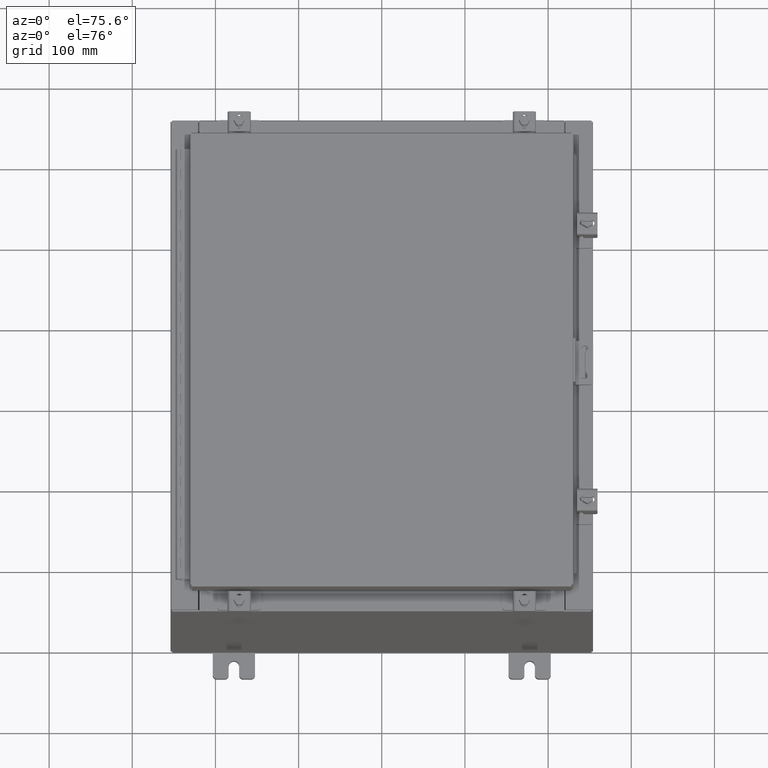
[diagram: clean part render]
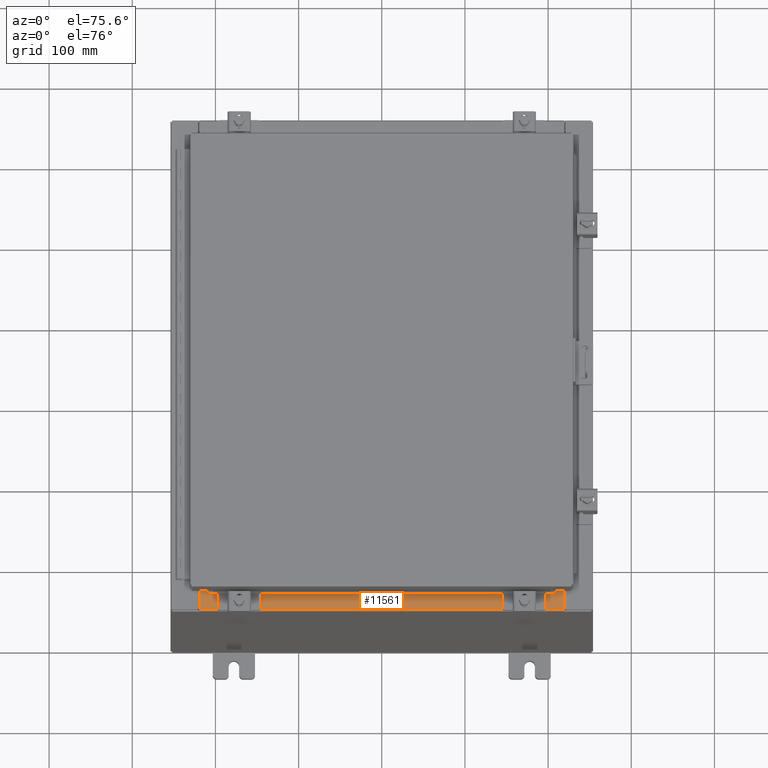
[diagram: same view with one face highlighted and labeled with its STEP entity id]
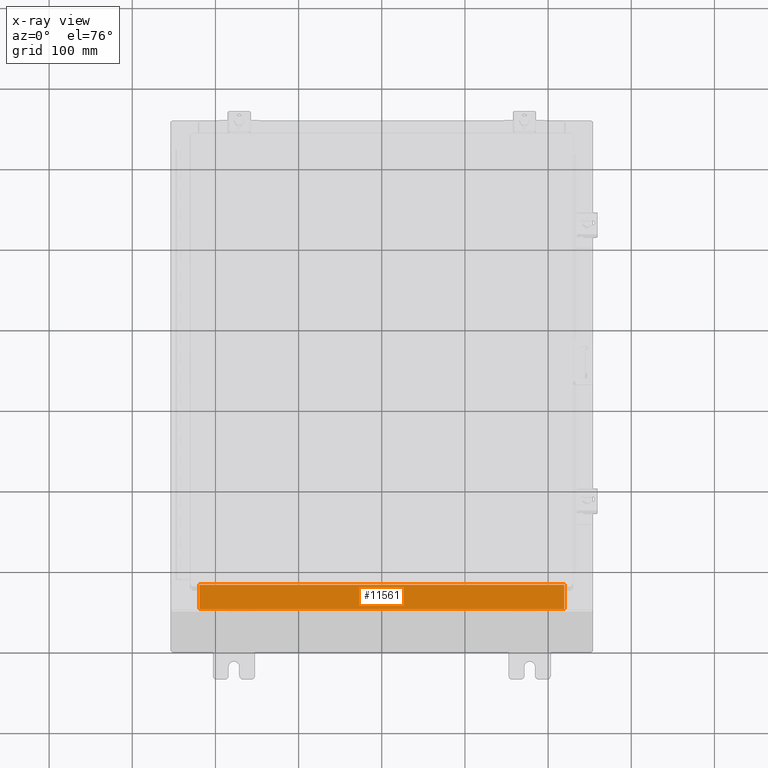
[diagram: x-ray of the same camera — body ghosted, the highlighted face saturated]
A machine part, auxiliary view. The second image highlights one B-rep face of the part: STEP entity #11561.
The next image is the same camera in x-ray: the body ghosted, the highlighted face saturated — about 0% of this face is hidden behind the body in this view.
In plain terms, the highlighted planar face has unit normal (-0, -0, 1).
Its self-contained STEP definition (entity closure, byte-faithful):
#314 = EDGE_CURVE ( 'NONE', #26483, #9694, #7683, .T. ) ;
#424 = ORIENTED_EDGE ( 'NONE', *, *, #314, .T. ) ;
#775 = CARTESIAN_POINT ( 'NONE',  ( -8.637200000000000000, -1.287299999999999200, 4.000000000000004400 ) ) ;
#1191 = VECTOR ( 'NONE', #30852, 39.37007874015748100 ) ;
#1311 = DIRECTION ( 'NONE',  ( -0.0000000000000000000, -1.000000000000000000, 3.566381192773190000E-015 ) ) ;
#1748 = VECTOR ( 'NONE', #1311, 39.37007874015748100 ) ;
#3635 = CARTESIAN_POINT ( 'NONE',  ( 8.637200000000000000, -1.287299999999999900, 4.000000000000003600 ) ) ;
#4105 = DIRECTION ( 'NONE',  ( 0.0000000000000000000, 3.566381192773190000E-015, 1.000000000000000000 ) ) ;
#4368 = VECTOR ( 'NONE', #26323, 39.37007874015748100 ) ;
#5742 = CARTESIAN_POINT ( 'NONE',  ( -8.637200000000000000, -0.07469999999999973900, 4.000000000000000000 ) ) ;
#6834 = LINE ( 'NONE', #16343, #1748 ) ;
#7323 = CARTESIAN_POINT ( 'NONE',  ( 8.637200000000000000, -1.287299999999999900, 4.000000000000004400 ) ) ;
#7528 = DIRECTION ( 'NONE',  ( -1.000000000000000000, 3.162886113166609200E-017, -1.128005754888089100E-031 ) ) ;
#7683 = LINE ( 'NONE', #12722, #20272 ) ;
#7844 = LINE ( 'NONE', #5742, #1191 ) ;
#8049 = VERTEX_POINT ( 'NONE', #7323 ) ;
#8390 = ORIENTED_EDGE ( 'NONE', *, *, #25501, .F. ) ;
#9694 = VERTEX_POINT ( 'NONE', #13358 ) ;
#9991 = FACE_OUTER_BOUND ( 'NONE', #10308, .T. ) ;
#10308 = EDGE_LOOP ( 'NONE', ( #14357, #8390, #18595, #424 ) ) ;
#11561 = ADVANCED_FACE ( 'NONE', ( #9991 ), #19158, .T. ) ;
#12722 = CARTESIAN_POINT ( 'NONE',  ( -2.773851121247567100E-018, -0.08770000000000000000, 4.000000000000000900 ) ) ;
#13358 = CARTESIAN_POINT ( 'NONE',  ( -8.637200000000000000, -0.08770000000000000000, 4.000000000000000000 ) ) ;
#14357 = ORIENTED_EDGE ( 'NONE', *, *, #26564, .F. ) ;
#15327 = CARTESIAN_POINT ( 'NONE',  ( 8.637200000000000000, -0.08769999999999965300, 4.000000000000000000 ) ) ;
#16343 = CARTESIAN_POINT ( 'NONE',  ( 8.637200000000000000, -1.300299999999999800, 4.000000000000004400 ) ) ;
#16778 = AXIS2_PLACEMENT_3D ( 'NONE', #24078, #4105, #21693 ) ;
#17735 = LINE ( 'NONE', #3635, #4368 ) ;
#18595 = ORIENTED_EDGE ( 'NONE', *, *, #23234, .F. ) ;
#19158 = PLANE ( 'NONE',  #16778 ) ;
#20206 = VERTEX_POINT ( 'NONE', #775 ) ;
#20272 = VECTOR ( 'NONE', #7528, 39.37007874015748100 ) ;
#21693 = DIRECTION ( 'NONE',  ( 0.0000000000000000000, -1.000000000000000000, 3.566381192773190000E-015 ) ) ;
#23234 = EDGE_CURVE ( 'NONE', #26483, #8049, #6834, .T. ) ;
#24078 = CARTESIAN_POINT ( 'NONE',  ( 0.0000000000000000000, 1.425992975200418500E-014, 4.000000000000000000 ) ) ;
#25501 = EDGE_CURVE ( 'NONE', #8049, #20206, #17735, .T. ) ;
#26323 = DIRECTION ( 'NONE',  ( -1.000000000000000000, 0.0000000000000000000, 0.0000000000000000000 ) ) ;
#26483 = VERTEX_POINT ( 'NONE', #15327 ) ;
#26564 = EDGE_CURVE ( 'NONE', #20206, #9694, #7844, .T. ) ;
#30852 = DIRECTION ( 'NONE',  ( -0.0000000000000000000, 1.000000000000000000, -3.566381192773190000E-015 ) ) ;